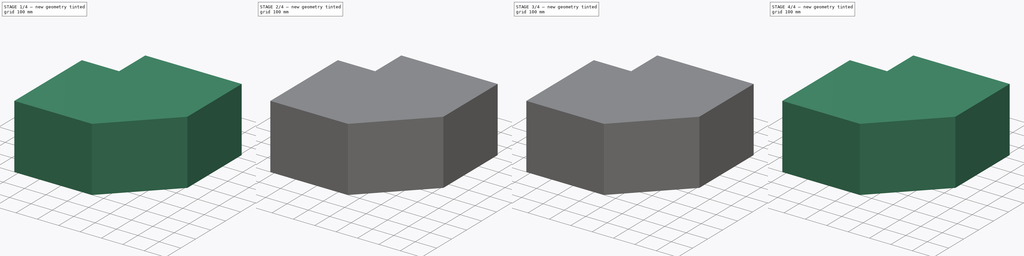
[diagram: build sequence overview — one tinted view per stage of 4, left to right]
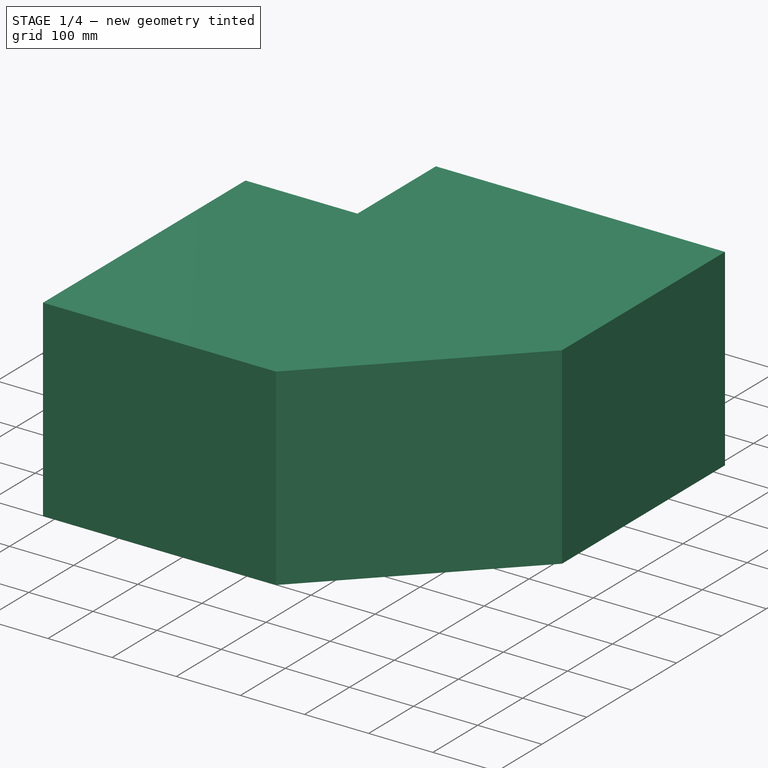
[diagram: stage 1 of 4 — iso view after this stage's code; geometry added in this stage tinted green]
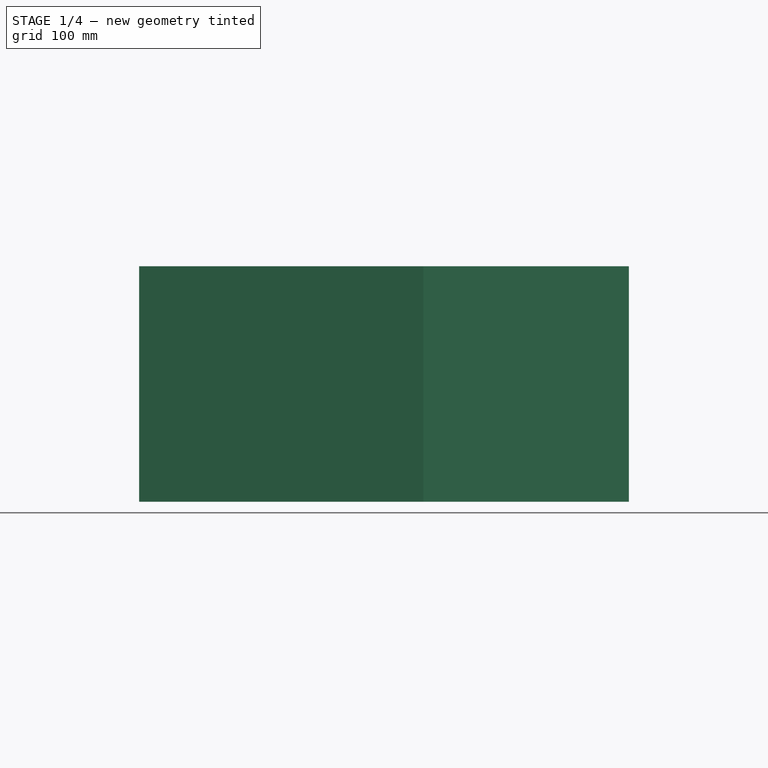
[diagram: stage 1 of 4 — front view after this stage's code; geometry added in this stage tinted green]
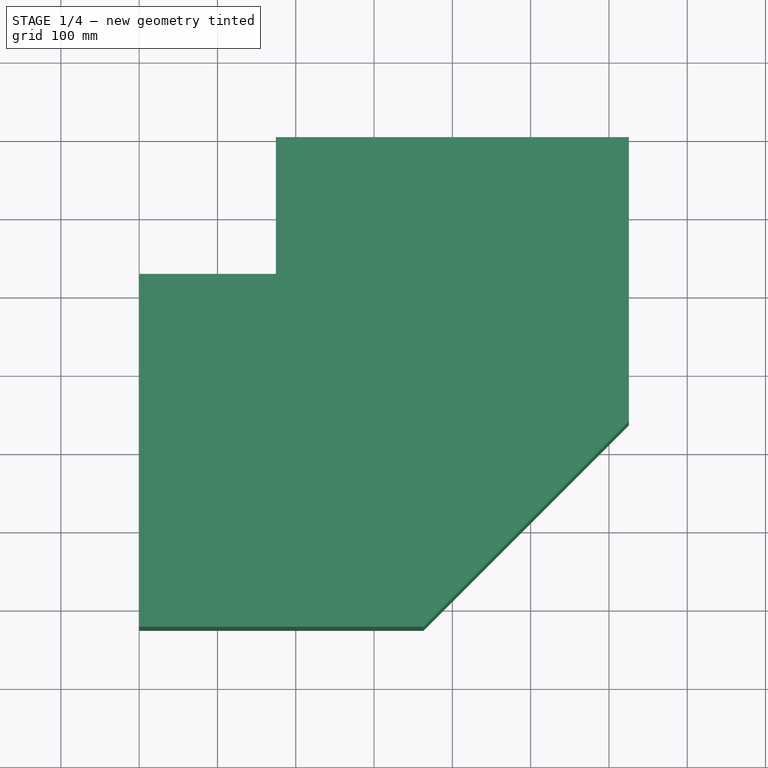
[diagram: stage 1 of 4 — top view after this stage's code; geometry added in this stage tinted green]
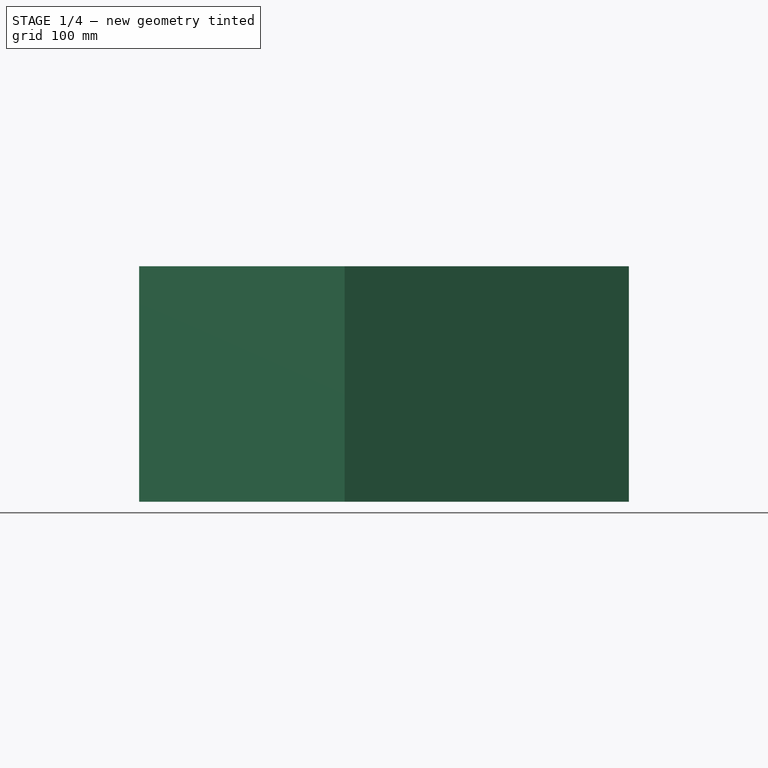
[diagram: stage 1 of 4 — right view after this stage's code; geometry added in this stage tinted green]
FCSTD DOCUMENT  (FreeCAD 0.16R6704 (Git))
Label: Chamfered_rectangular_bend
License: All rights reserved
LicenseURL: http://en.wikipedia.org/wiki/All_rights_reserved
objects: App::DocumentObjectGroup×7, Part::FeaturePython×4, Sketcher::SketchObject×3, Part::Extrusion×3, Part::Thickness×2, Part::Cut×2, Part::MultiFuse×1, Spreadsheet::Sheet×1
note: 15 computed .brp shape members not serialized (recipe doc carries the construction recipe); baked Part::Feature solids carry a one-line shape summary decoded from their .brp

FEATURE [Sketcher::SketchObject] Sketch033  label="Profile_bend_DIMENSIONS"
  expr: Constraints.Chamfer_legth = Settings_chamfered_rectangular_bend.chamfer
  expr: Constraints.Extension_01 = Settings_chamfered_rectangular_bend.e_side_1
  expr: Constraints.Bend_width_01 = Settings_chamfered_rectangular_bend.w_side_1
  expr: Constraints.Bend_width_02 = Settings_chamfered_rectangular_bend.w_side_2
  expr: Constraints.Extension_02 = Settings_chamfered_rectangular_bend.e_side_2
  sketch-geometry (7):
    g0: LineSegment StartX=0 StartY=0 StartZ=0 EndX=352.513 EndY=0 EndZ=0
    g1: LineSegment StartX=352.513 StartY=0 StartZ=0 EndX=600 EndY=247.487 EndZ=0
    g2: LineSegment StartX=600 StartY=247.487 StartZ=0 EndX=600 EndY=600 EndZ=0
    g3: LineSegment StartX=600 StartY=600 StartZ=0 EndX=200 EndY=600 EndZ=0
    g4: LineSegment StartX=200 StartY=600 StartZ=0 EndX=200 EndY=400 EndZ=0
    g5: LineSegment StartX=200 StartY=400 StartZ=0 EndX=0 EndY=400 EndZ=0
    g6: LineSegment StartX=0 StartY=400 StartZ=0 EndX=0 EndY=0 EndZ=0
  constraints (21):
    c: Horizontal(g0)
    c: Coincident(g0,g1)
    c: Coincident(g1,g2)
    c: Vertical(g2)
    c: Coincident(g2,g3)
    c: Horizontal(g3)
    c: Coincident(g3,g4)
    c: Vertical(g4)
    c: Coincident(g4,g5)
    c: Horizontal(g5)
    c: Coincident(g5,g6)
    c: Coincident(g6,g0)
    c: Vertical(g6)
    c: Angle(g1) = 0.785398
    c: DistanceX(g3,g3) = 400  'Bend_width_02'
    c: DistanceY(g6,g6) = 400  'Bend_width_01'
    c: Distance(g1) = 350  'Chamfer_legth'
    c: DistanceX(g-1,g0) = 0  'Origin_X_distance'
    c: DistanceY(g-1,g0) = 0  'Origin_Y_distance'
    c: DistanceY(g4,g3) = 200  'Extension_02'
    c: DistanceX(g5,g4) = 200  'Extension_01'
FEATURE [Part::Extrusion] Extrude_Sketch033  label="HEIGHT_base"
  Base = -> Sketch033
  Dir = (0,0,250)
  Solid = true
  expr: Dir.z = Settings_chamfered_rectangular_bend.h_duct
FEATURE [Part::Thickness] Thickness  label="1.1-Chamfered_rectangular_bend_SHEET_THICKNESS"
  Faces = -> Extrude_Sketch033 [Face7,Face4]
  Intersection = true
  Join = 2
  Mode = 0
  SelfIntersection = true
  Value = -2
  expr: Value = Settings_chamfered_rectangular_bend.sheet_thickness * -1
FEATURE [Part::Thickness] Thickness001  label="2.1-Insulation_THICKNESS"
  Faces = -> Extrude_Sketch033 [Face4,Face7]
  Intersection = false
  Join = 2
  Mode = 0
  SelfIntersection = true
  Value = 25.4
  expr: Value = Settings_chamfered_rectangular_bend.insu_thickness
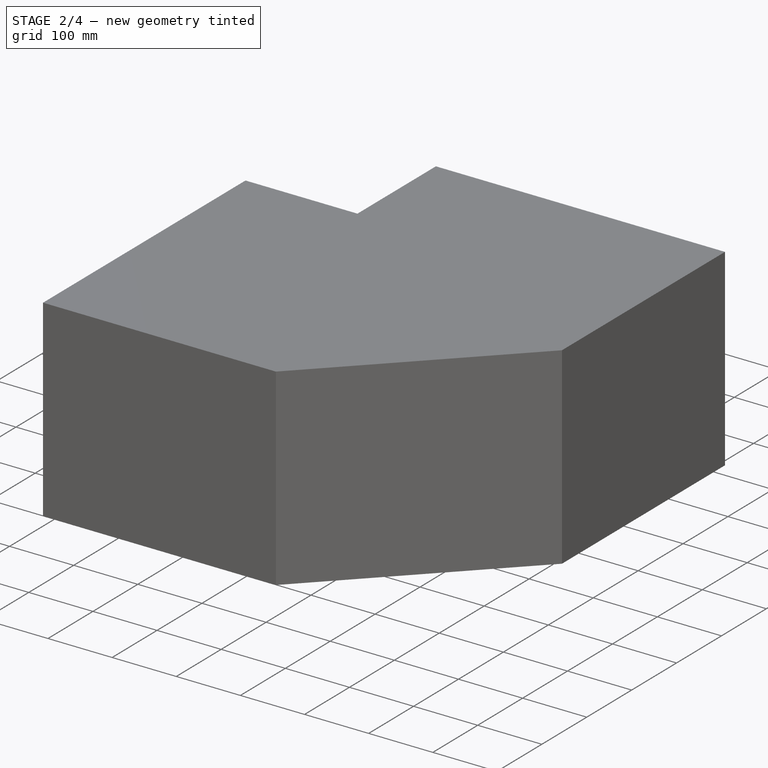
[diagram: stage 2 of 4 — iso view after this stage's code; geometry added in this stage tinted green]
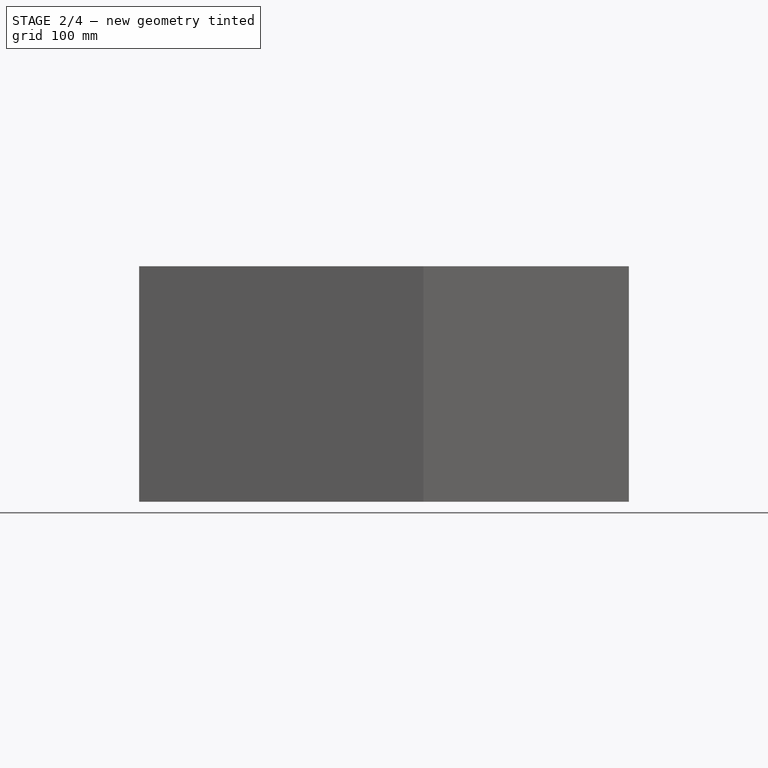
[diagram: stage 2 of 4 — front view after this stage's code; geometry added in this stage tinted green]
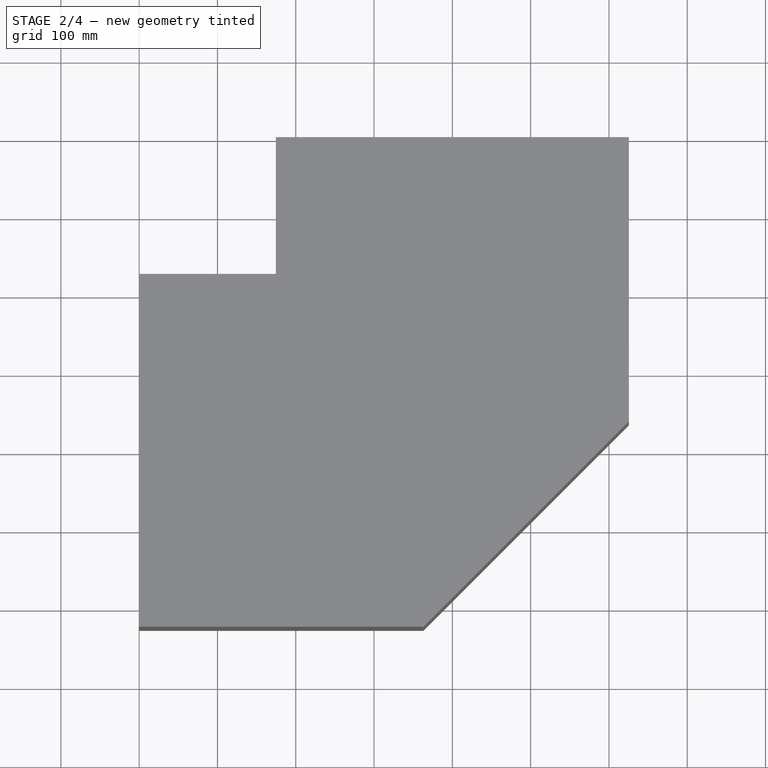
[diagram: stage 2 of 4 — top view after this stage's code; geometry added in this stage tinted green]
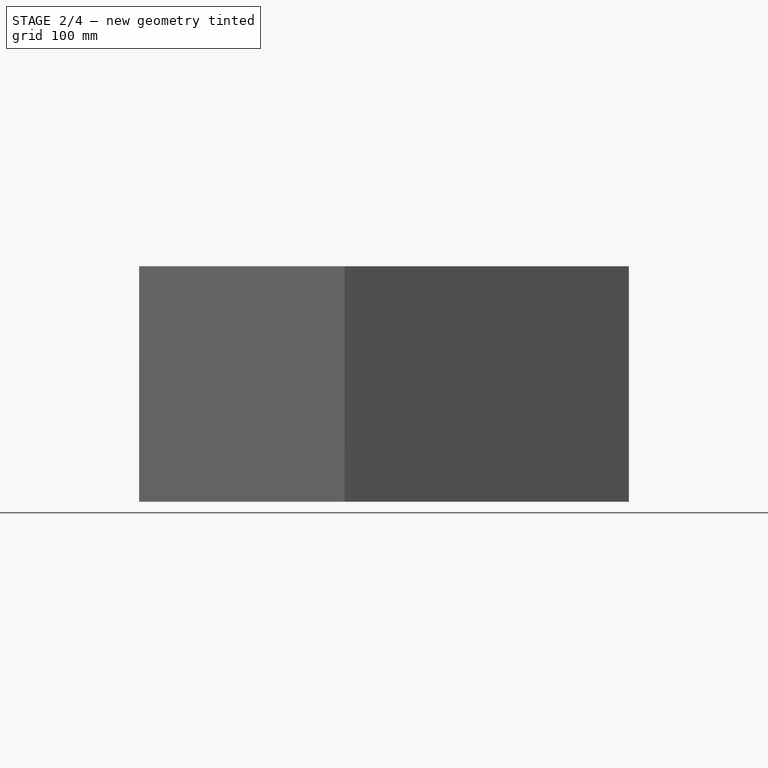
[diagram: stage 2 of 4 — right view after this stage's code; geometry added in this stage tinted green]
FEATURE [Sketcher::SketchObject] Sketch034  label="FLANGE_HEIGHT_01"
  ExternalGeometry = -> [Thickness]
  Placement = pos=(0,0,0) rot=(0.57735,-0.57735,-0.57735;2.0944rad)
  Support = -> Extrude_Sketch033 [Face7]
  expr: Constraints.Flange_01 = Settings_chamfered_rectangular_bend.flange_height
  sketch-geometry (12):
    g0: LineSegment StartX=-420 StartY=270 StartZ=0 EndX=20 EndY=270 EndZ=0
    g1: LineSegment StartX=20 StartY=270 StartZ=0 EndX=20 EndY=-20 EndZ=0
    g2: LineSegment StartX=20 StartY=-20 StartZ=0 EndX=-420 EndY=-20 EndZ=0
    g3: LineSegment StartX=-420 StartY=-20 StartZ=0 EndX=-420 EndY=270 EndZ=0
    g4: LineSegment StartX=-400 StartY=250 StartZ=0 EndX=0 EndY=250 EndZ=0
    g5: LineSegment StartX=0 StartY=250 StartZ=0 EndX=0 EndY=0 EndZ=0
    g6: LineSegment StartX=0 StartY=0 StartZ=0 EndX=-400 EndY=0 EndZ=0
    g7: LineSegment StartX=-400 StartY=0 StartZ=0 EndX=-400 EndY=250 EndZ=0
    g8: LineSegment [constr] StartX=-400 StartY=250 StartZ=0 EndX=-420 EndY=250 EndZ=0
    g9: LineSegment [constr] StartX=-400 StartY=250 StartZ=0 EndX=-400 EndY=270 EndZ=0
    g10: LineSegment [constr] StartX=0 StartY=0 StartZ=0 EndX=20 EndY=0 EndZ=0
    g11: LineSegment [constr] StartX=-400 StartY=0 StartZ=0 EndX=-400 EndY=-20 EndZ=0
  constraints (38):
    c: Coincident(g0,g1)
    c: Coincident(g1,g2)
    c: Coincident(g2,g3)
    c: Coincident(g3,g0)
    c: Horizontal(g0)
    c: Horizontal(g2)
    c: Vertical(g1)
    c: Vertical(g3)
    c: Coincident(g4,g5)
    c: Coincident(g5,g6)
    c: Coincident(g6,g7)
    c: Coincident(g7,g4)
    c: Horizontal(g4)
    c: Horizontal(g6)
    c: Vertical(g5)
    c: Vertical(g7)
    c: DistanceX(g0,g4) = 20  'Flange_01'
    c: PointOnObject(g8,g3)
    c: PointOnObject(g9,g4)
    c: PointOnObject(g9,g0)
    c: PointOnObject(g10,g5)
    c: PointOnObject(g10,g1)
    c: PointOnObject(g11,g6)
    c: PointOnObject(g11,g2)
    c: Angle(g8) = 3.14159
    c: PointOnObject(g8,g7)
    c: Angle(g9) = 1.5708
    c: Angle(g10) = 0
    c: Angle(g11) = -1.5708
    c: Coincident(g6,g11)
    c: Coincident(g4,g9)
    c: Equal(g8,g9)
    c: Equal(g9,g10)
    c: Equal(g10,g11)
    c: Coincident(g8,g4)
    c: Coincident(g10,g5)
    c: Coincident(g6,g-6)
    c: Coincident(g-5,g4)
FEATURE [Part::Extrusion] Extrude_Sketch034  label="Flange_THICKNESS_01"
  Base = -> Sketch034
  Dir = (3,0,0)
  Solid = true
  expr: Dir.x = Settings_chamfered_rectangular_bend.flange_thickness
FEATURE [Sketcher::SketchObject] Sketch035  label="FLANGE_HEIGHT_02"
  ExternalGeometry = -> [Thickness]
  Placement = pos=(0,600,0) rot=(0,0.707107,0.707107;3.14159rad)
  Support = -> Extrude_Sketch033 [Face4]
  expr: Constraints.Flange_02 = Settings_chamfered_rectangular_bend.flange_height
  sketch-geometry (12):
    g0: LineSegment StartX=-600 StartY=250 StartZ=0 EndX=-200 EndY=250 EndZ=0
    g1: LineSegment StartX=-200 StartY=250 StartZ=0 EndX=-200 EndY=0 EndZ=0
    g2: LineSegment StartX=-200 StartY=0 StartZ=0 EndX=-600 EndY=0 EndZ=0
    g3: LineSegment StartX=-600 StartY=0 StartZ=0 EndX=-600 EndY=250 EndZ=0
    g4: LineSegment StartX=-620 StartY=270 StartZ=0 EndX=-180 EndY=270 EndZ=0
    g5: LineSegment StartX=-180 StartY=270 StartZ=0 EndX=-180 EndY=-20 EndZ=0
    g6: LineSegment StartX=-180 StartY=-20 StartZ=0 EndX=-620 EndY=-20 EndZ=0
    g7: LineSegment StartX=-620 StartY=-20 StartZ=0 EndX=-620 EndY=270 EndZ=0
    g8: LineSegment [constr] StartX=-600 StartY=250 StartZ=0 EndX=-620 EndY=250 EndZ=0
    g9: LineSegment [constr] StartX=-600 StartY=250 StartZ=0 EndX=-600 EndY=270 EndZ=0
    g10: LineSegment [constr] StartX=-200 StartY=0 StartZ=0 EndX=-180 EndY=0 EndZ=0
    g11: LineSegment [constr] StartX=-200 StartY=0 StartZ=0 EndX=-200 EndY=-20 EndZ=0
  constraints (38):
    c: Coincident(g0,g1)
    c: Coincident(g1,g2)
    c: Coincident(g2,g3)
    c: Coincident(g3,g0)
    c: Horizontal(g0)
    c: Horizontal(g2)
    c: Vertical(g1)
    c: Vertical(g3)
    c: Coincident(g4,g5)
    c: Coincident(g5,g6)
    c: Coincident(g6,g7)
    c: Coincident(g7,g4)
    c: Horizontal(g4)
    c: Horizontal(g6)
    c: Vertical(g5)
    c: Vertical(g7)
    c: DistanceX(g4,g0) = 20  'Flange_02'
    c: PointOnObject(g8,g3)
    c: Angle(g9) = 1.5708
    c: PointOnObject(g9,g0)
    c: PointOnObject(g8,g7)
    c: Angle(g8) = -3.14159
    c: PointOnObject(g10,g1)
    c: PointOnObject(g10,g5)
    c: Angle(g10) = 0
    c: PointOnObject(g11,g2)
    c: Angle(g11) = -1.5708
    c: PointOnObject(g11,g6)
    c: Equal(g8,g9)
    c: Equal(g9,g10)
    c: Equal(g10,g11)
    c: PointOnObject(g9,g4)
    c: Coincident(g0,g9)
    c: Coincident(g8,g0)
    c: Coincident(g1,g11)
    c: Coincident(g1,g10)
    c: Coincident(g0,g-5)
    c: Coincident(g-6,g2)
FEATURE [Part::Extrusion] Extrude_Sketch035  label="Flange_THICKNESS_02"
  Base = -> Sketch035
  Dir = (0,-3,0)
  Solid = true
  expr: Dir.y = Settings_chamfered_rectangular_bend.flange_thickness * -1
FEATURE [Part::Cut] Cut
  Base = -> Thickness001
  Tool = -> Extrude_Sketch034
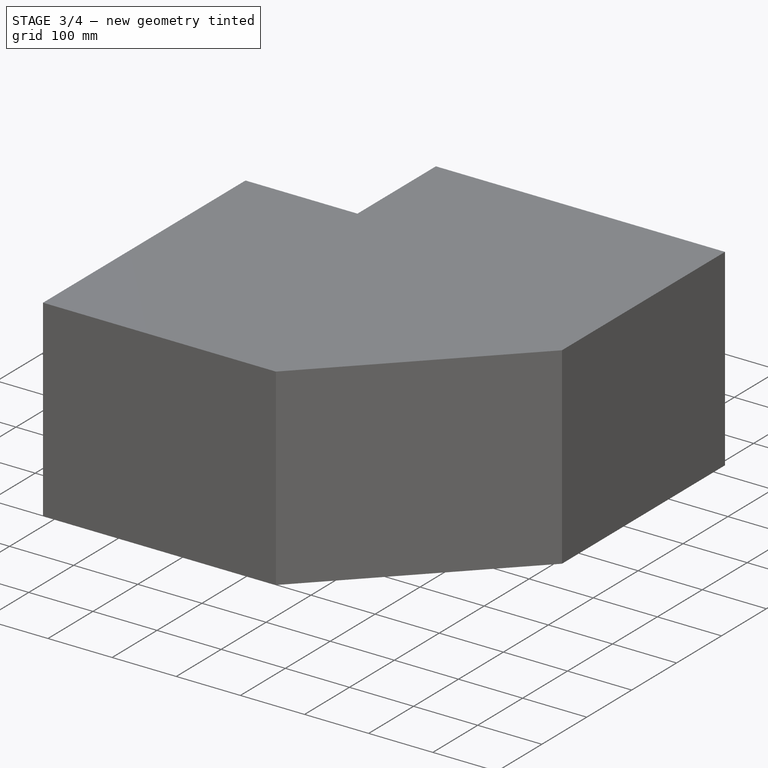
[diagram: stage 3 of 4 — iso view after this stage's code; geometry added in this stage tinted green]
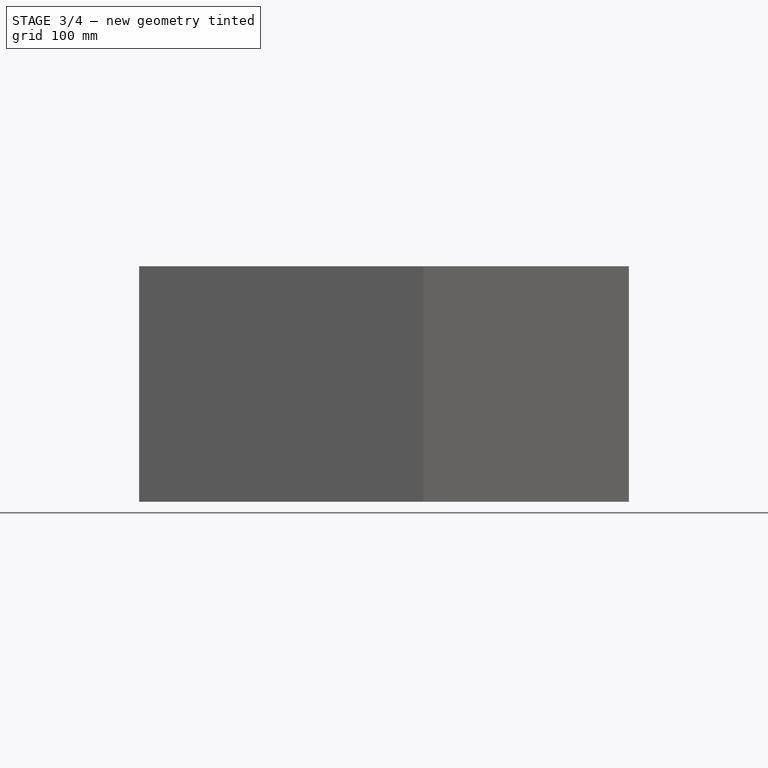
[diagram: stage 3 of 4 — front view after this stage's code; geometry added in this stage tinted green]
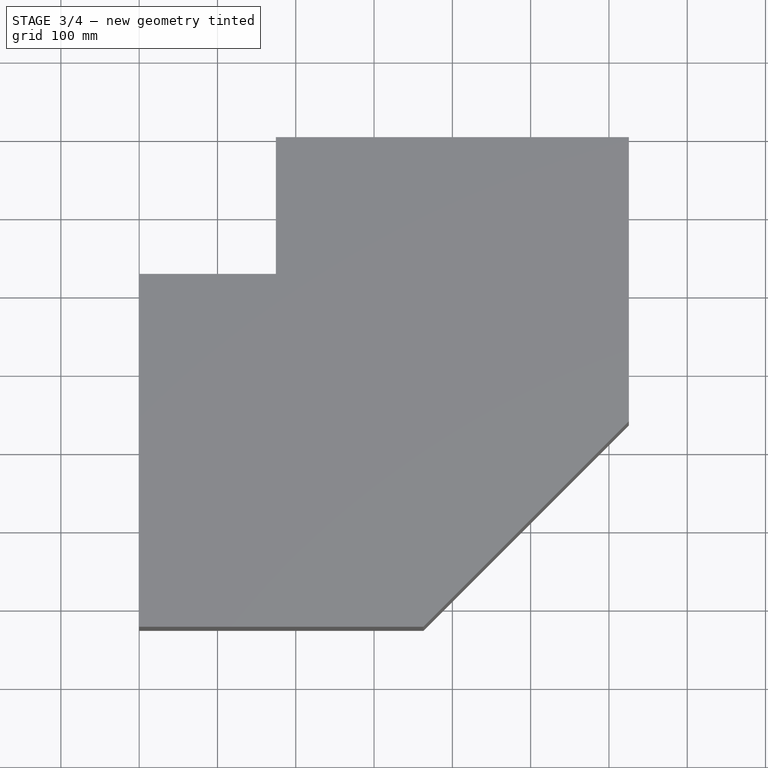
[diagram: stage 3 of 4 — top view after this stage's code; geometry added in this stage tinted green]
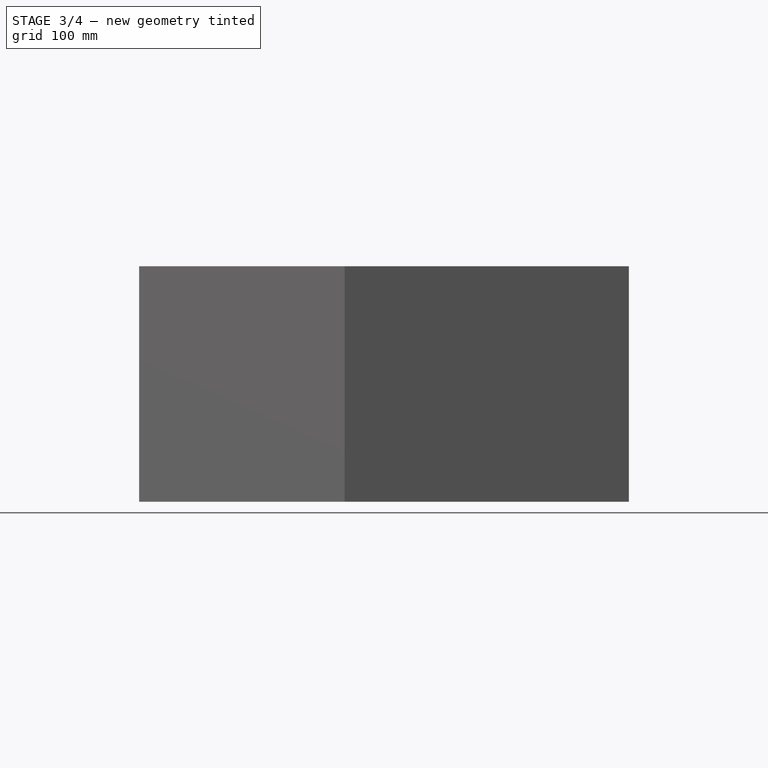
[diagram: stage 3 of 4 — right view after this stage's code; geometry added in this stage tinted green]
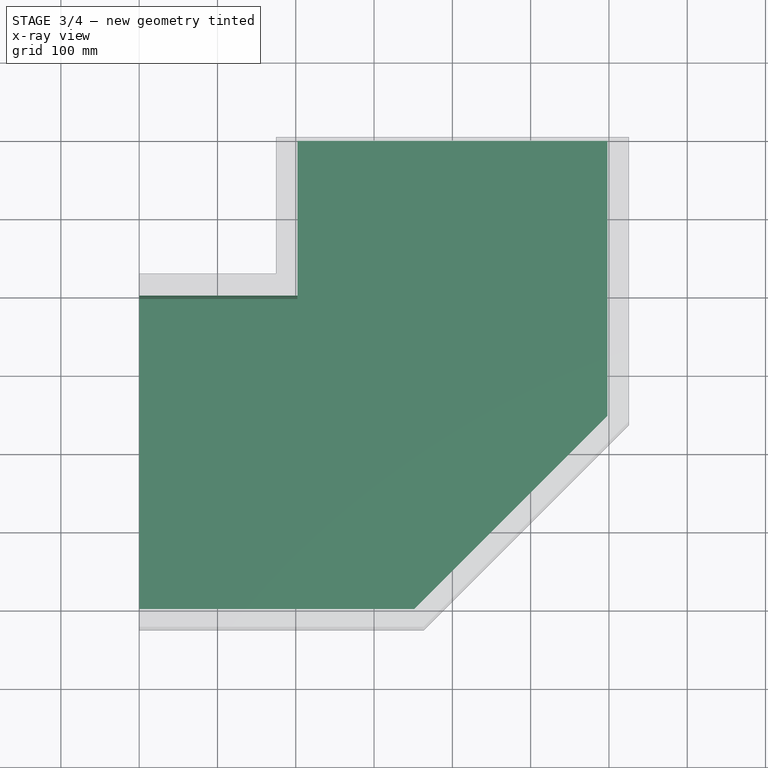
[diagram: stage 3 of 4 — x-ray composite at the top view; earlier geometry ghosted, this stage's added geometry solid]
FEATURE [Part::MultiFuse] Fusion  label="01-Rectangular_bend_flanges"
  Shapes = -> [Thickness,Extrude_Sketch034,Extrude_Sketch035]
FEATURE [Part::Cut] Cut001  label="02-Insulation"
  Base = -> Cut
  Tool = -> Extrude_Sketch035
FEATURE [Part::FeaturePython] Clone032  label="Clone of 2.1-Insulation_THICKNESS"  # Draft clone (typed FeaturePython)
  Objects = -> [Thickness001]
  Scale = (1,1,1)
FEATURE [App::DocumentObjectGroup] Group  label="No_flanges"
  Group = -> [Clone031,Clone032]
FEATURE [App::DocumentObjectGroup] Grupo053  label="B-Final_parts_clones"
  Group = -> [Group,Group001]
FEATURE [App::DocumentObjectGroup] Group017  label="A-Components"
  Group = -> [Grupo051,Grupo052]
FEATURE [Spreadsheet::Sheet] Spreadsheet009  label="Settings_chamfered_rectangular_bend"
  cells = A1=Dimensionamento - Settings; A3=01. Lado 1 - Side 1; A4=1.1. Largura do lado 1 - Width side 1:; B4(w_side_1)=400; C4=Alias: w_side_1; A5=1.2. Extensão lado 1 - Extension side 1:; B5(e_side_1)=200; C5=Alias: e_side_1; A7=02. Lado 2 - Side 2; A8=2.1. Largura do lado 2 - Width side 2:; B8(w_side_2)=400; C8=Alias: w_side_2; A9=2.2. Extensão lado 2 - Extension side 2:; B9(e_side_2)=200; C9=Alias: e_side_2; A11=3. Altura do duto - Ducto height:; B11(h_duct)=250; C11=Alias: h_duct; A13=04. Chanfro - Chamfer:; B13(chamfer)=350; C13=Alias: chamfer; A15=05. Espessura da chapa - Sheet thickness:; B15(sheet_thickness)=2; C15=Alias: sheet_thickness; A17=06. Flanges; A18=6.1. Altura flanges - Flanges height:; B18(flange_height)=20; C18=Alias: flange_height; A19=6.2. Espessura flanges - Flanges thickness:; B19(flange_thickness)=3; C19=Alias: flange_thickness; A21=07. Espessura isolamento - Insulation thickness:; B21(insu_thickness)=25.4; C21=Alias: insu_thickness
FEATURE [App::DocumentObjectGroup] Grupo015  label="Chamfered_rectangular_bend"
  Group = -> [Spreadsheet009,Group017,Grupo053]
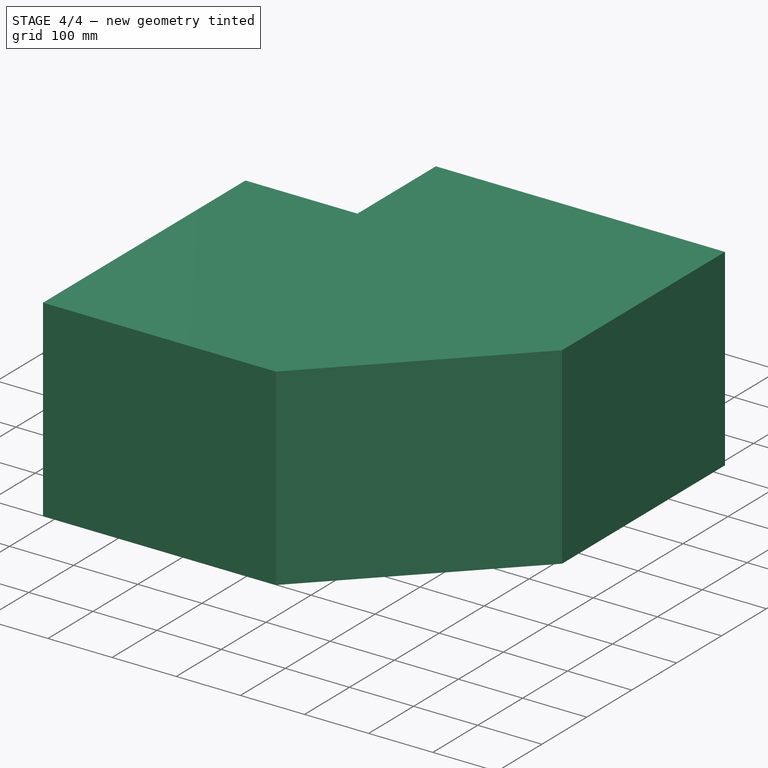
[diagram: stage 4 of 4 — iso view after this stage's code; geometry added in this stage tinted green]
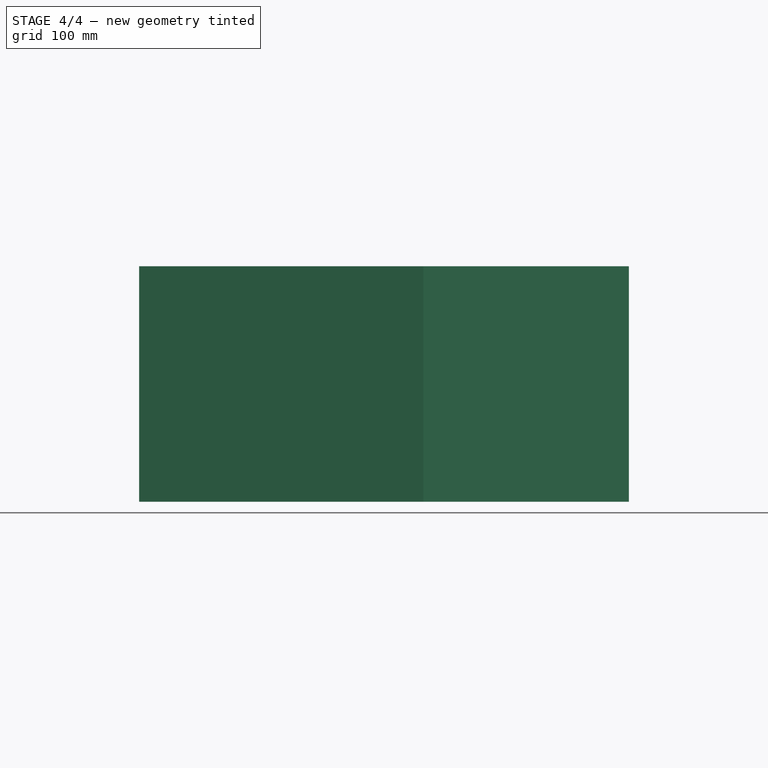
[diagram: stage 4 of 4 — front view after this stage's code; geometry added in this stage tinted green]
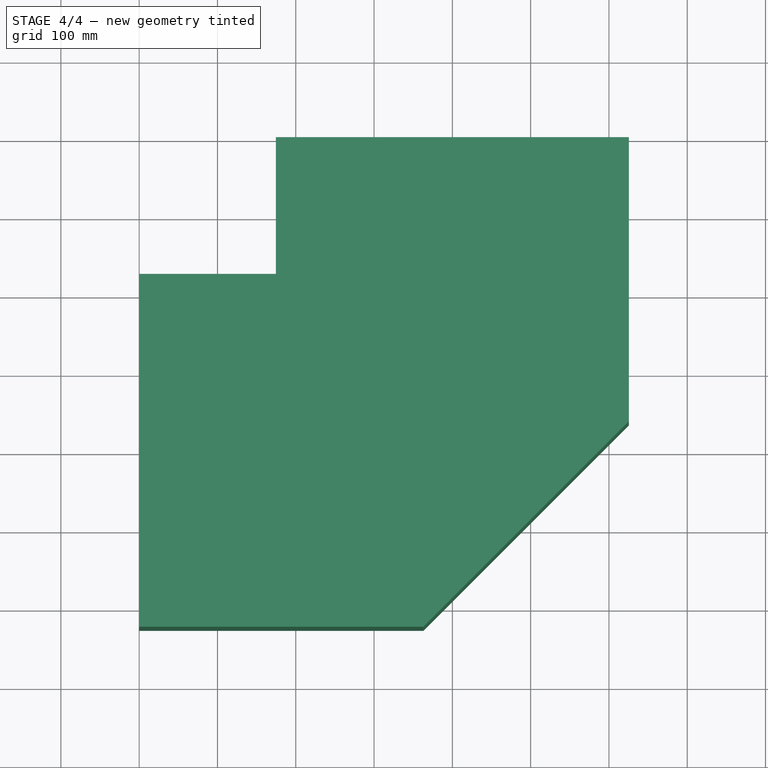
[diagram: stage 4 of 4 — top view after this stage's code; geometry added in this stage tinted green]
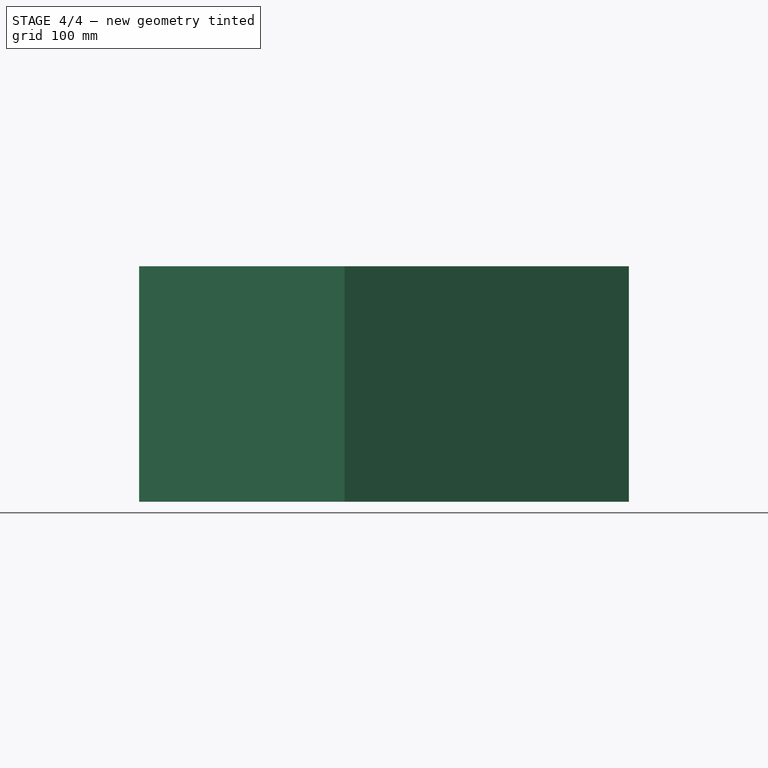
[diagram: stage 4 of 4 — right view after this stage's code; geometry added in this stage tinted green]
FEATURE [App::DocumentObjectGroup] Grupo051  label="A-Bases "
  Group = -> [Extrude_Sketch033]
FEATURE [App::DocumentObjectGroup] Grupo052  label="B-Parts"
  Group = -> [Fusion,Cut001]
FEATURE [Part::FeaturePython] Clone029  label="Clone of 01-Rectangular_bend_flanges"  # Draft clone (typed FeaturePython)
  Objects = -> [Fusion]
  Scale = (1,1,1)
FEATURE [Part::FeaturePython] Clone030  label="Clone of 02-Insulation"  # Draft clone (typed FeaturePython)
  Objects = -> [Cut001]
  Scale = (1,1,1)
FEATURE [App::DocumentObjectGroup] Group001  label="Flanged"
  Group = -> [Clone029,Clone030]
FEATURE [Part::FeaturePython] Clone031  label="Clone of 1.1-Chamfered_rectangular_bend_SHEET_THICKNESS"  # Draft clone (typed FeaturePython)
  Objects = -> [Thickness]
  Scale = (1,1,1)
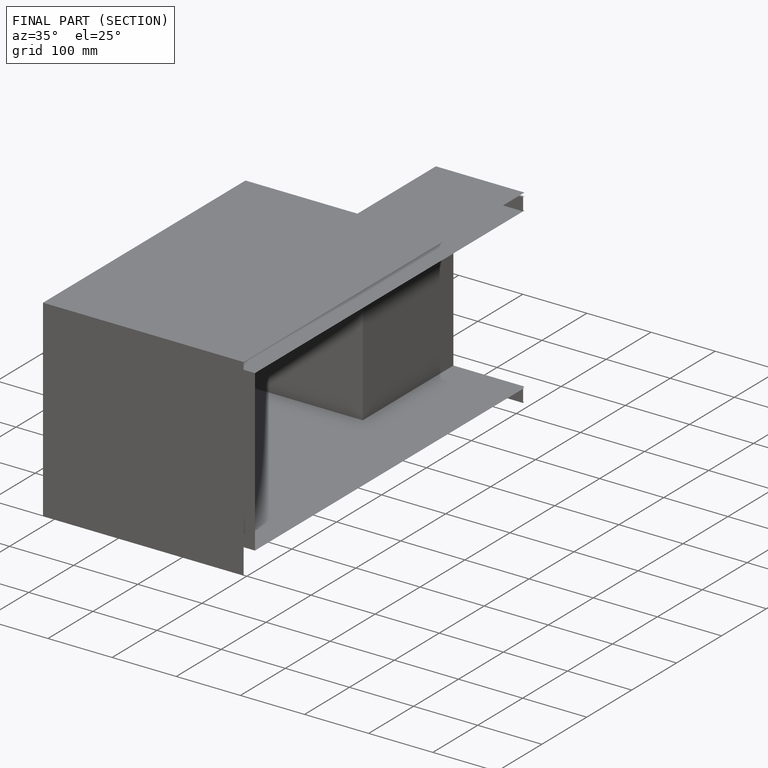
[diagram: finished part — half-section view (interior)]
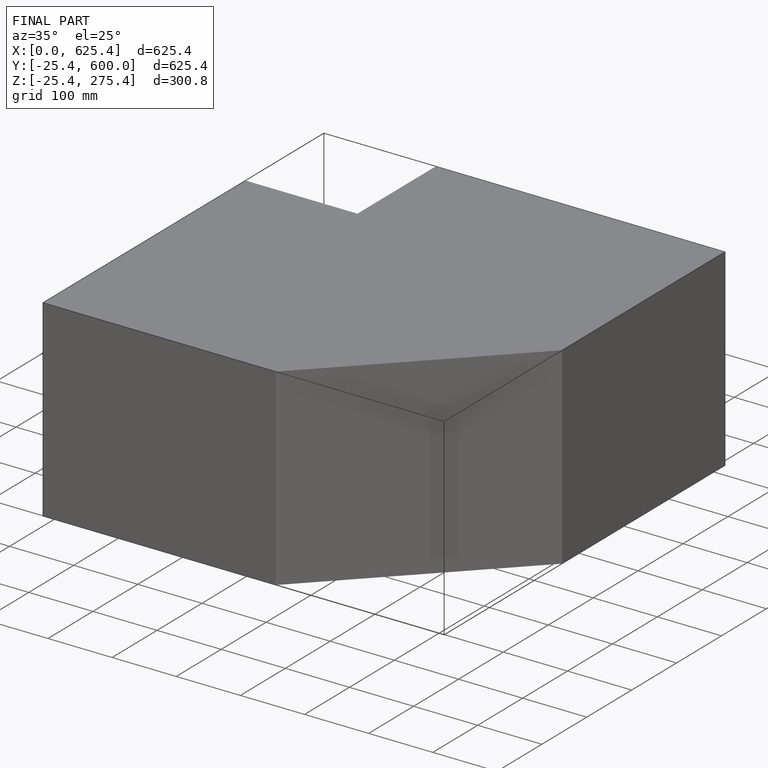
[diagram: finished part — iso view with bounding-box wireframe]
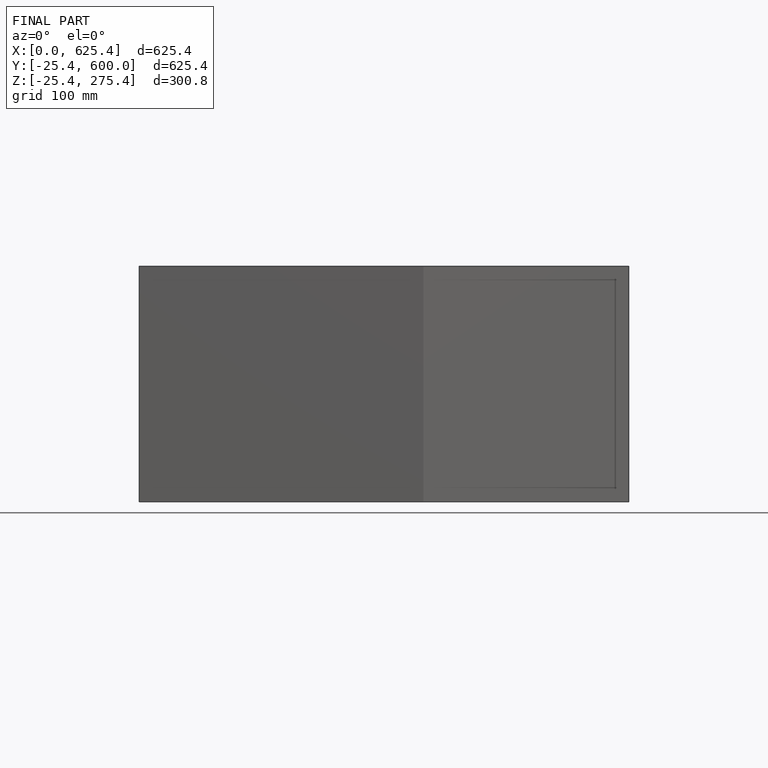
[diagram: finished part — front view with bounding-box wireframe]
